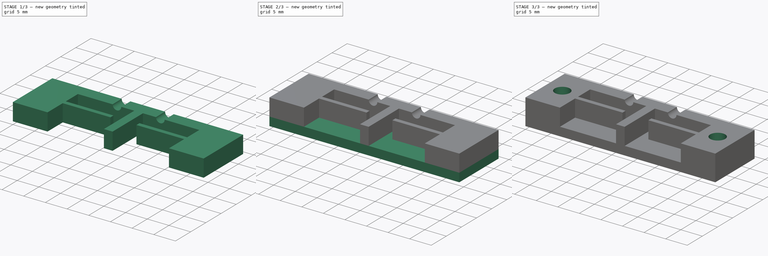
[diagram: build sequence overview — one tinted view per stage of 3, left to right]
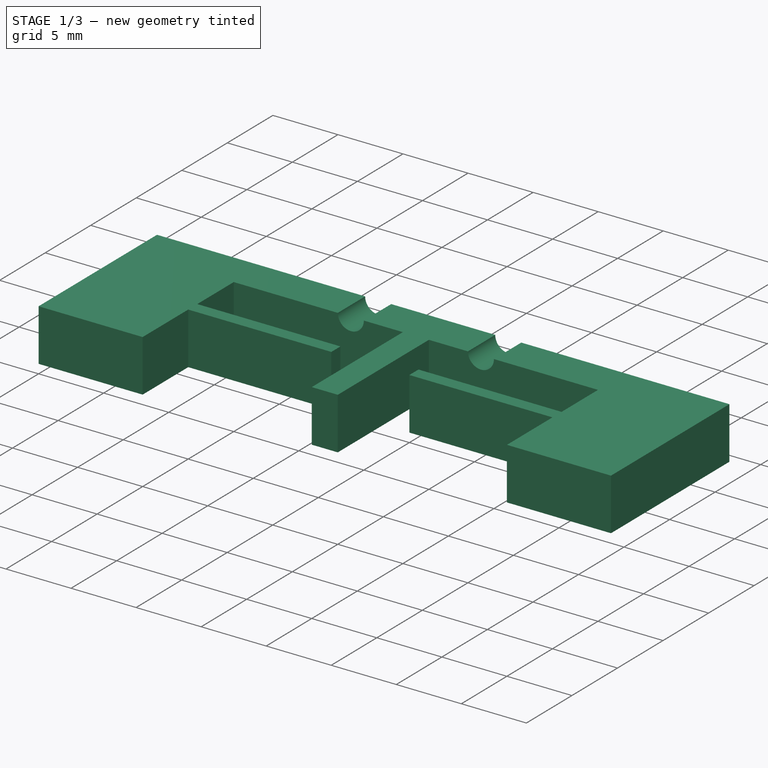
[diagram: stage 1 of 3 — iso view after this stage's code; geometry added in this stage tinted green]
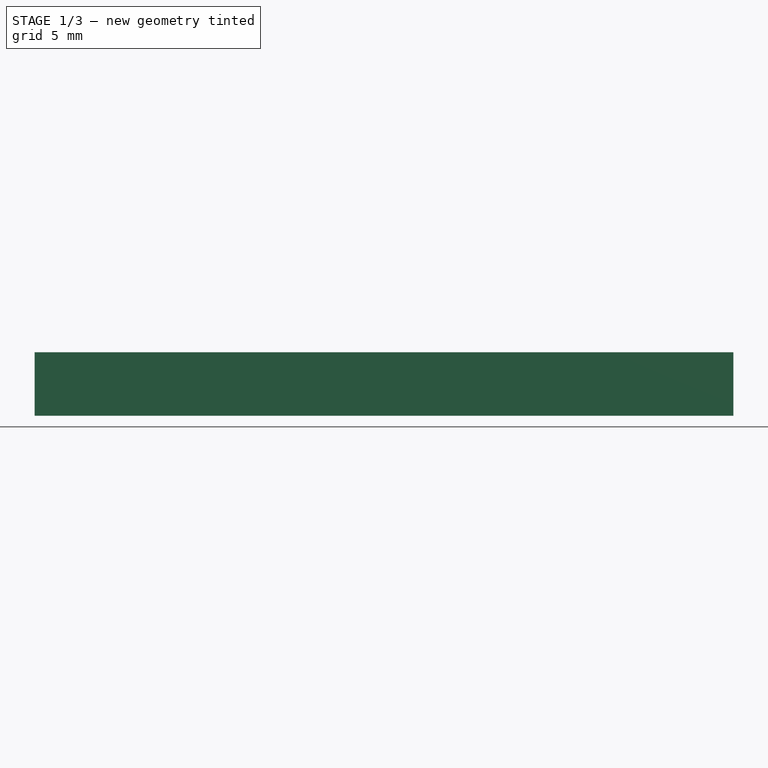
[diagram: stage 1 of 3 — front view after this stage's code; geometry added in this stage tinted green]
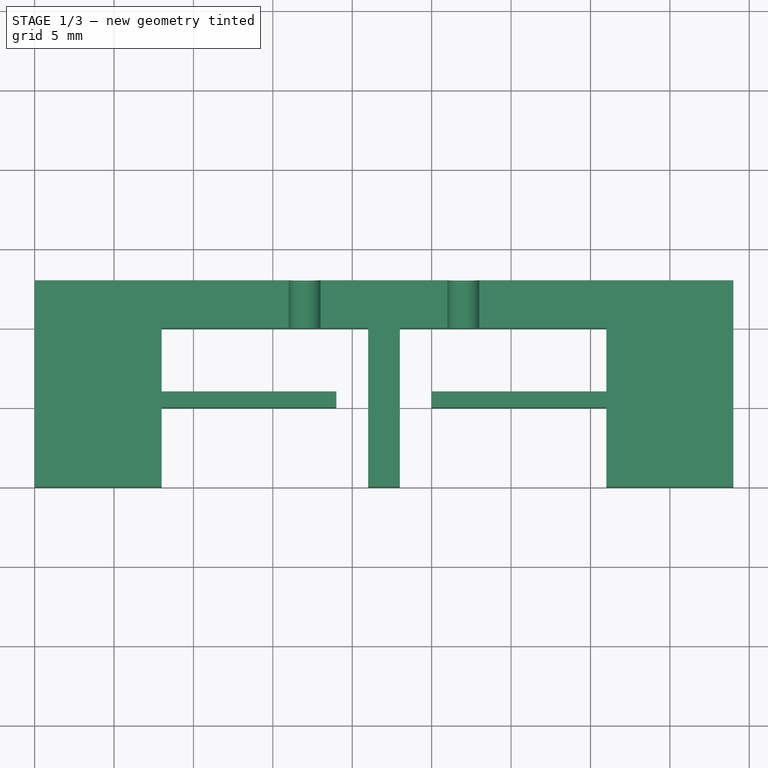
[diagram: stage 1 of 3 — top view after this stage's code; geometry added in this stage tinted green]
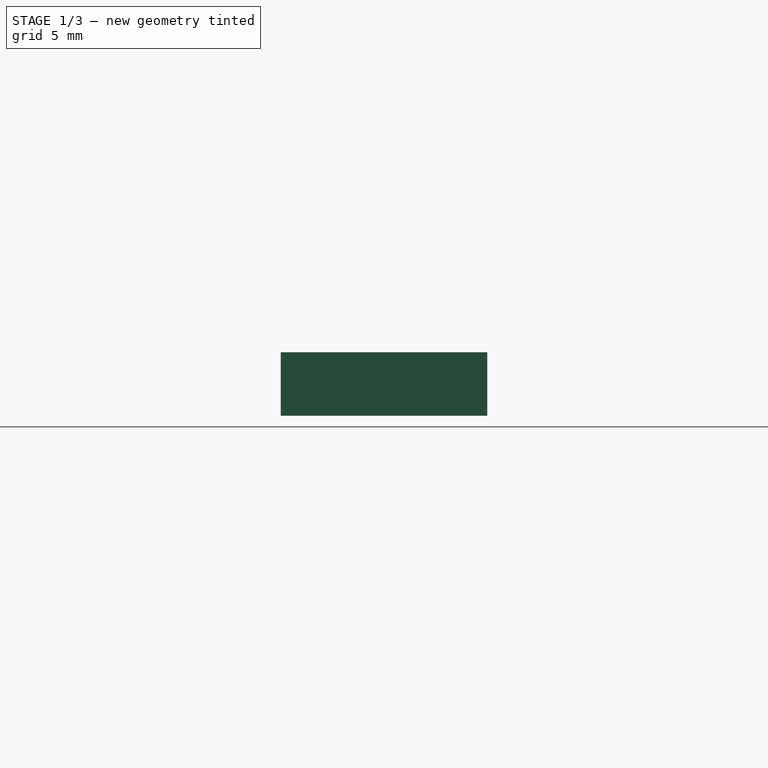
[diagram: stage 1 of 3 — right view after this stage's code; geometry added in this stage tinted green]
FCSTD DOCUMENT
Label: MagConnector
objects: Sketcher::SketchObject×5, PartDesign::Pocket×3, PartDesign::Pad×2
note: 12 computed .brp shape members not serialized (recipe doc carries the construction recipe); baked Part::Feature solids carry a one-line shape summary decoded from their .brp

FEATURE [Sketcher::SketchObject] Sketch
  sketch-geometry (20):
    g0: LineSegment StartX=8 StartY=10 StartZ=0 EndX=8 EndY=6 EndZ=0
    g1: LineSegment StartX=8 StartY=6 StartZ=0 EndX=19 EndY=6 EndZ=0
    g2: LineSegment StartX=19 StartY=6 StartZ=0 EndX=19 EndY=5 EndZ=0
    g3: LineSegment StartX=19 StartY=5 StartZ=0 EndX=8 EndY=5 EndZ=0
    g4: LineSegment StartX=8 StartY=5 StartZ=0 EndX=8 EndY=0 EndZ=0
    g5: LineSegment StartX=8 StartY=0 StartZ=0 EndX=0 EndY=0 EndZ=0
    g6: LineSegment StartX=0 StartY=0 StartZ=0 EndX=0 EndY=13 EndZ=0
    g7: LineSegment StartX=0 StartY=13 StartZ=0 EndX=44 EndY=13 EndZ=0
    g8: LineSegment StartX=44 StartY=13 StartZ=0 EndX=44 EndY=0 EndZ=0
    g9: LineSegment StartX=44 StartY=0 StartZ=0 EndX=36 EndY=0 EndZ=0
    g10: LineSegment StartX=36 StartY=0 StartZ=0 EndX=36 EndY=5 EndZ=0
    g11: LineSegment StartX=36 StartY=5 StartZ=0 EndX=25 EndY=5 EndZ=0
    g12: LineSegment StartX=25 StartY=5 StartZ=0 EndX=25 EndY=6 EndZ=0
    g13: LineSegment StartX=25 StartY=6 StartZ=0 EndX=36 EndY=6 EndZ=0
    g14: LineSegment StartX=36 StartY=6 StartZ=0 EndX=36 EndY=10 EndZ=0
    g15: LineSegment StartX=36 StartY=10 StartZ=0 EndX=23 EndY=10 EndZ=0
    g16: LineSegment StartX=23 StartY=10 StartZ=0 EndX=23 EndY=0 EndZ=0
    g17: LineSegment StartX=23 StartY=0 StartZ=0 EndX=21 EndY=0 EndZ=0
    g18: LineSegment StartX=21 StartY=0 StartZ=0 EndX=21 EndY=10 EndZ=0
    g19: LineSegment StartX=21 StartY=10 StartZ=0 EndX=8 EndY=10 EndZ=0
  constraints (60):
    c: Vertical(g0)
    c: Coincident(g0,g1)
    c: Horizontal(g1)
    c: Coincident(g1,g2)
    c: Coincident(g2,g3)
    c: Horizontal(g3)
    c: Coincident(g3,g4)
    c: Coincident(g4,g5)
    c: Horizontal(g5)
    c: Coincident(g5,g6)
    c: Vertical(g6)
    c: Coincident(g6,g7)
    c: Horizontal(g7)
    c: Coincident(g7,g8)
    c: Vertical(g8)
    c: Coincident(g8,g9)
    c: Horizontal(g9)
    c: Coincident(g9,g10)
    c: Vertical(g10)
    c: Coincident(g10,g11)
    c: Horizontal(g11)
    c: Coincident(g11,g12)
    c: Vertical(g12)
    c: Coincident(g12,g13)
    c: Horizontal(g13)
    c: Coincident(g13,g14)
    c: Vertical(g14)
    c: Coincident(g14,g15)
    c: Horizontal(g15)
    c: Coincident(g15,g16)
    c: Vertical(g16)
    c: Coincident(g16,g17)
    c: Horizontal(g17)
    c: Coincident(g17,g18)
    c: Vertical(g18)
    c: Coincident(g18,g19)
    c: Horizontal(g19)
    c: Coincident(g0,g19)
    c: DistanceY(g2) = -1
    c: DistanceX(g3) = -11
    c: Vertical(g4)
    c: Vertical(g2)
    c: Equal(g3,g1)
    c: Equal(g1,g13)
    c: Equal(g13,g11)
    c: Equal(g2,g12)
    c: Equal(g0,g14)
    c: Equal(g4,g10)
    c: Equal(g5,g9)
    c: DistanceX(g17) = -2
    c: DistanceX(g19) = -13
    c: DistanceX(g5) = -8
    c: DistanceY(g4) = -5
    c: DistanceY(g0) = -4
    c: DistanceY(g6) = 13
    c: DistanceX(g5) = 0
    c: DistanceY(g5) = 0
    c: DistanceY(g16) = -10
    c: Equal(g16,g18)
    c: Equal(g15,g19)
FEATURE [PartDesign::Pad] Pad
  Length = 4
  MirroredExtent = false
  Sketch = -> Sketch
FEATURE [Sketcher::SketchObject] Sketch001
  Placement = pos=(0,13,0) rot=(0,0.707107,0.707107;3.14159rad)
  Support = -> Pad [Face8]
  sketch-geometry (3):
    g0: Circle CenterX=-27 CenterY=4 CenterZ=0 NormalX=0 NormalY=0 NormalZ=1 Radius=1
    g1: Circle CenterX=-17 CenterY=4 CenterZ=0 NormalX=0 NormalY=0 NormalZ=1 Radius=1
    g2: LineSegment [constr] StartX=-27 StartY=4 StartZ=0 EndX=-17 EndY=4 EndZ=0
  constraints (8):
    c: Horizontal(g2)
    c: Coincident(g2,g1)
    c: Coincident(g0,g2)
    c: DistanceX(g2) = 10
    c: DistanceX(g1) = -17
    c: DistanceY(g1) = 4
    c: Radius(g1) = 1
    c: Equal(g1,g0)
FEATURE [PartDesign::Pocket] Pocket
  Length = 5
  Sketch = -> Sketch001
  Type = 0
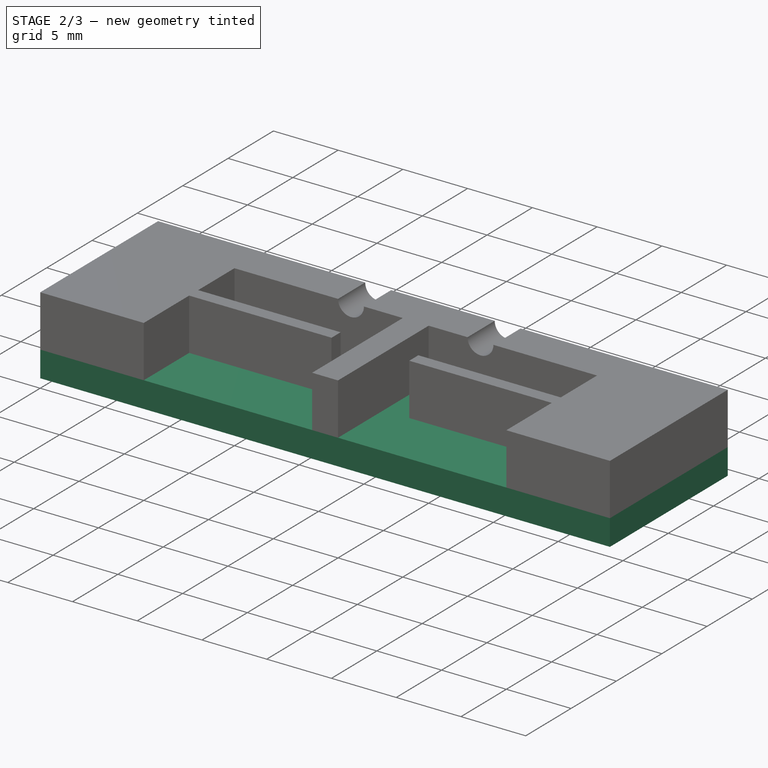
[diagram: stage 2 of 3 — iso view after this stage's code; geometry added in this stage tinted green]
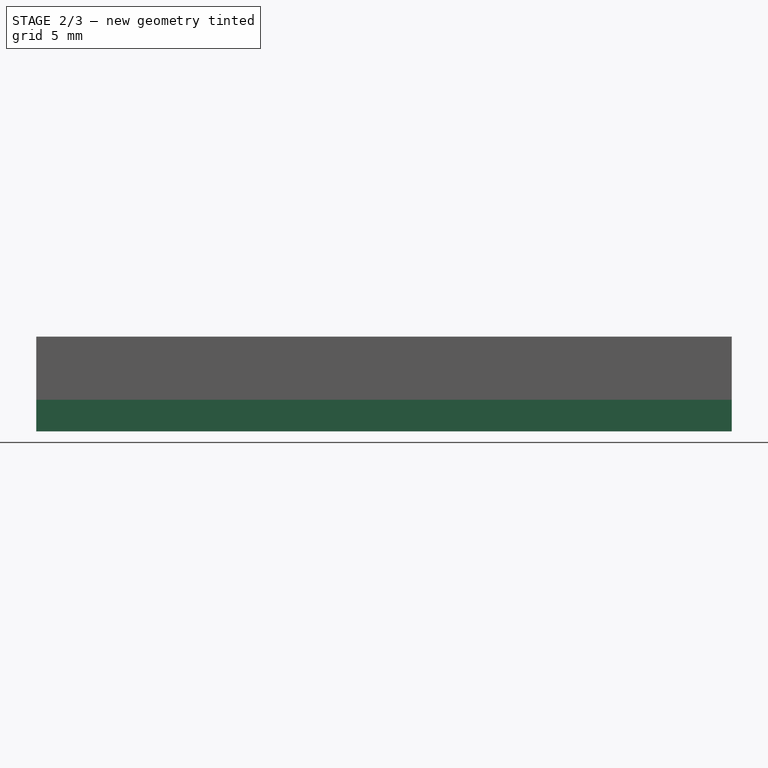
[diagram: stage 2 of 3 — front view after this stage's code; geometry added in this stage tinted green]
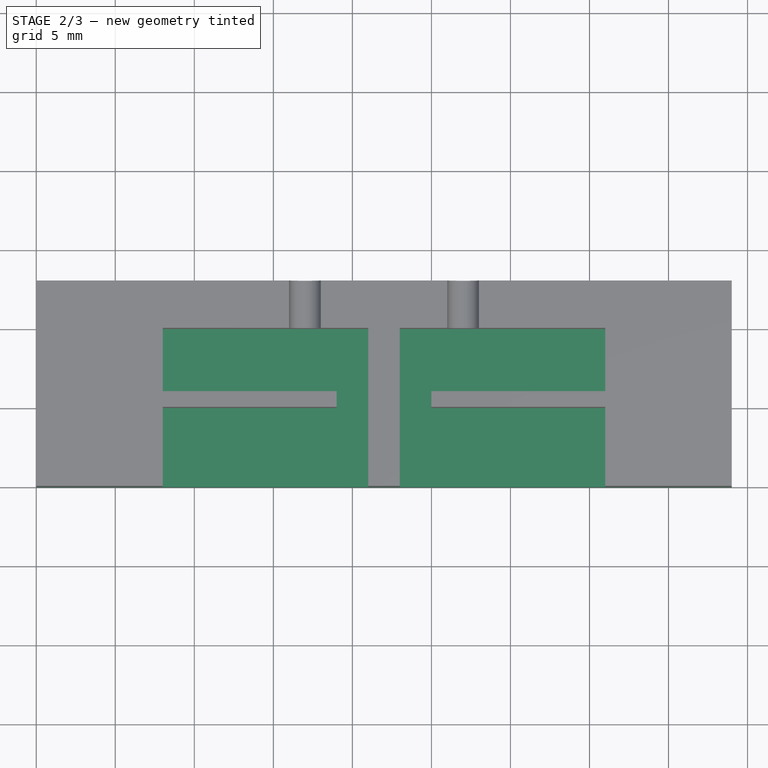
[diagram: stage 2 of 3 — top view after this stage's code; geometry added in this stage tinted green]
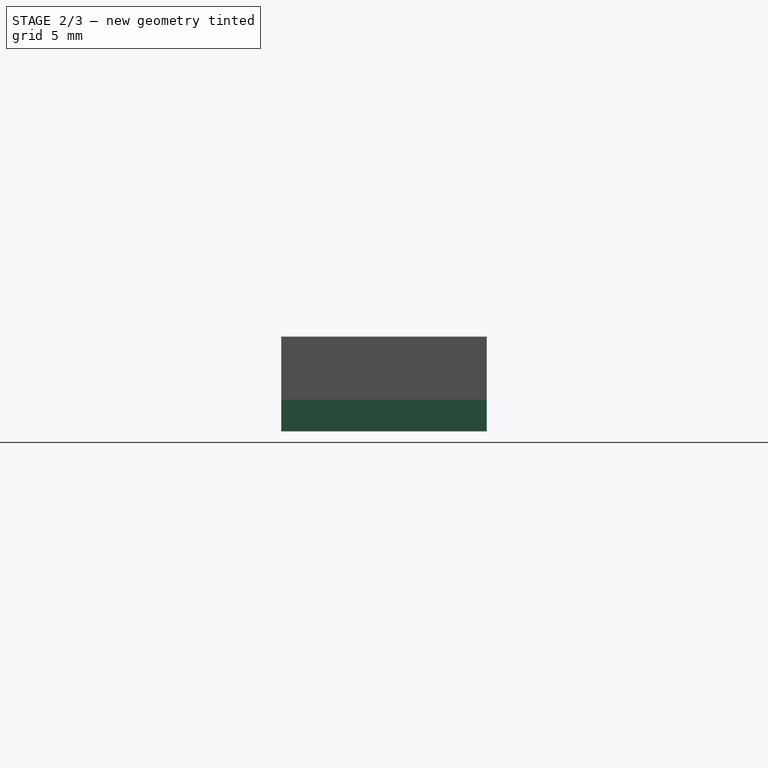
[diagram: stage 2 of 3 — right view after this stage's code; geometry added in this stage tinted green]
FEATURE [Sketcher::SketchObject] Sketch002
  Placement = pos=(0,0,0) rot=(1,0,0;3.14159rad)
  Support = -> Pocket [Face4]
  sketch-geometry (4):
    g0: LineSegment StartX=0 StartY=0 StartZ=0 EndX=44 EndY=0 EndZ=0
    g1: LineSegment StartX=44 StartY=0 StartZ=0 EndX=44 EndY=-13 EndZ=0
    g2: LineSegment StartX=44 StartY=-13 StartZ=0 EndX=0 EndY=-13 EndZ=0
    g3: LineSegment StartX=0 StartY=-13 StartZ=0 EndX=0 EndY=0 EndZ=0
  constraints (12):
    c: Coincident(g0,g1)
    c: Coincident(g1,g2)
    c: Coincident(g2,g3)
    c: Coincident(g3,g0)
    c: Horizontal(g0)
    c: Horizontal(g2)
    c: Vertical(g1)
    c: Vertical(g3)
    c: DistanceX(g2) = -44
    c: DistanceY(g3) = 13
    c: DistanceX(g0) = 0
    c: DistanceY(g0) = 0
FEATURE [PartDesign::Pad] Pad001
  Length = 2
  MirroredExtent = false
  Sketch = -> Sketch002
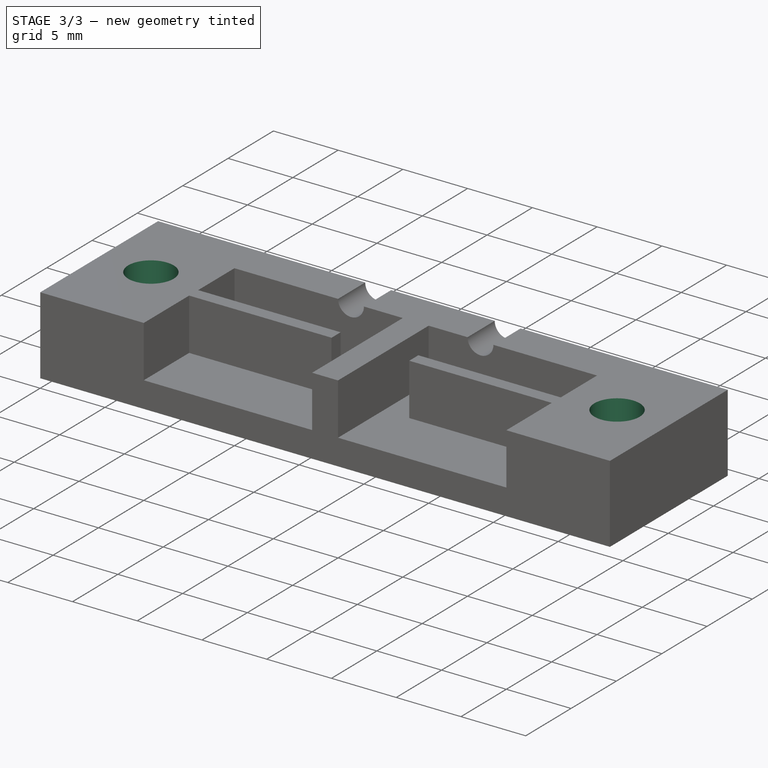
[diagram: stage 3 of 3 — iso view after this stage's code; geometry added in this stage tinted green]
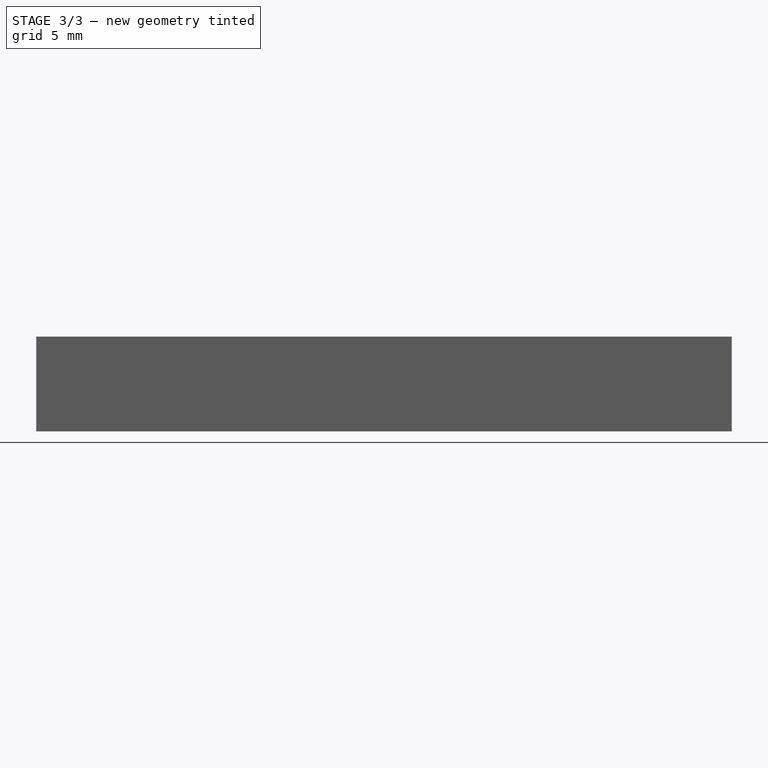
[diagram: stage 3 of 3 — front view after this stage's code; geometry added in this stage tinted green]
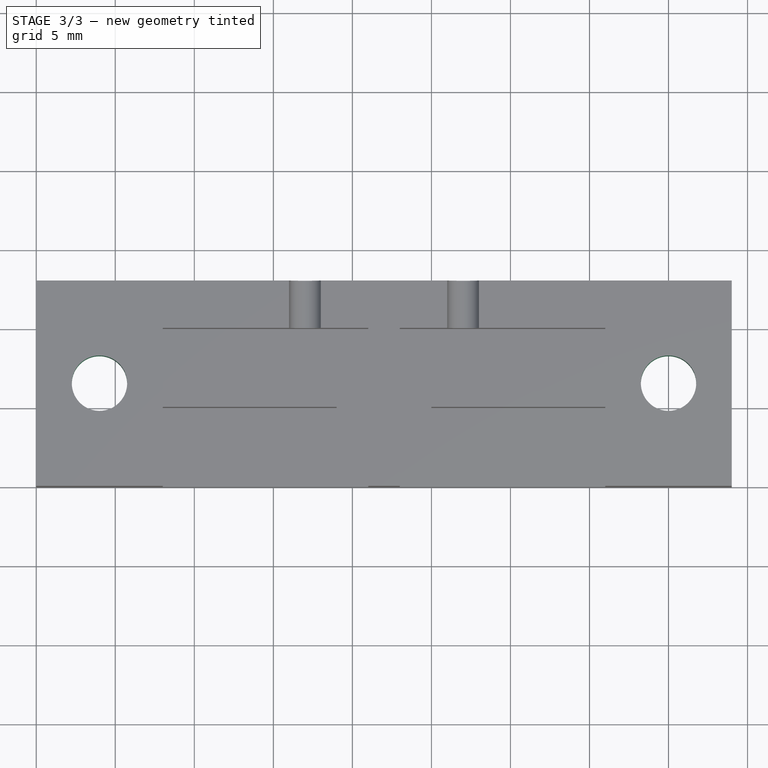
[diagram: stage 3 of 3 — top view after this stage's code; geometry added in this stage tinted green]
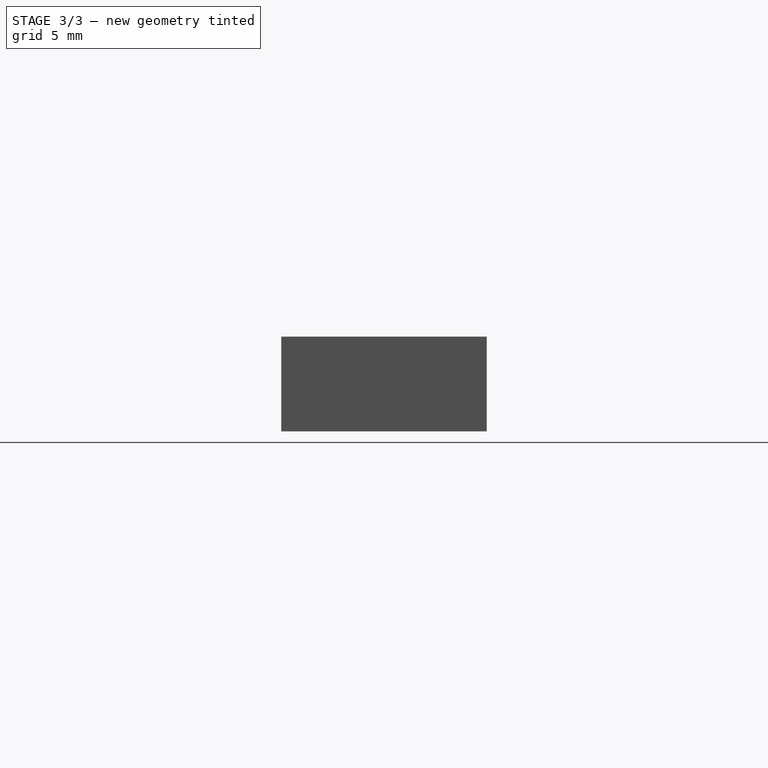
[diagram: stage 3 of 3 — right view after this stage's code; geometry added in this stage tinted green]
FEATURE [Sketcher::SketchObject] Sketch004
  Placement = pos=(0,0,-2) rot=(1,0,0;3.14159rad)
  Support = -> Pad001 [Face31]
  sketch-geometry (12):
    g0: LineSegment StartX=0.9 StartY=-8.28979 StartZ=0 EndX=0.9 EndY=-4.71021 EndZ=0
    g1: LineSegment StartX=0.9 StartY=-4.71021 StartZ=0 EndX=4 EndY=-2.92043 EndZ=0
    g2: LineSegment StartX=4 StartY=-2.92043 StartZ=0 EndX=7.1 EndY=-4.71021 EndZ=0
    g3: LineSegment StartX=7.1 StartY=-4.71021 StartZ=0 EndX=7.1 EndY=-8.28979 EndZ=0
    g4: LineSegment StartX=7.1 StartY=-8.28979 StartZ=0 EndX=4 EndY=-10.0796 EndZ=0
    g5: LineSegment StartX=4 StartY=-10.0796 StartZ=0 EndX=0.9 EndY=-8.28979 EndZ=0
    g6: LineSegment [constr] StartX=7.1 StartY=-4.71021 StartZ=0 EndX=4 EndY=-6.5 EndZ=0
    g7: LineSegment [constr] StartX=4 StartY=-6.5 StartZ=0 EndX=7.1 EndY=-8.28979 EndZ=0
    g8: LineSegment [constr] StartX=4 StartY=-6.5 StartZ=0 EndX=0.9 EndY=-4.71021 EndZ=0
    g9: LineSegment [constr] StartX=4 StartY=-6.5 StartZ=0 EndX=0.9 EndY=-8.28979 EndZ=0
    g10: LineSegment [constr] StartX=4 StartY=-2.92043 StartZ=0 EndX=4 EndY=-6.5 EndZ=0
    g11: Circle CenterX=40 CenterY=-6.5 CenterZ=0 NormalX=0 NormalY=0 NormalZ=1 Radius=3.5
  constraints (32):
    c: Coincident(g0,g1)
    c: Coincident(g1,g2)
    c: Coincident(g2,g3)
    c: Vertical(g3)
    c: Coincident(g3,g4)
    c: Coincident(g4,g5)
    c: Coincident(g0,g5)
    c: Vertical(g0)
    c: Equal(g0,g3)
    c: Equal(g2,g0)
    c: Equal(g1,g0)
    c: Parallel(g1,g4)
    c: Parallel(g2,g5)
    c: Coincident(g9,g8)
    c: Coincident(g7,g6)
    c: Coincident(g8,g6)
    c: Coincident(g3,g7)
    c: Coincident(g2,g6)
    c: Coincident(g8,g0)
    c: Coincident(g9,g0)
    c: Equal(g7,g6)
    c: Equal(g6,g8)
    c: Equal(g8,g9)
    c: Coincident(g10,g6)
    c: Coincident(g10,g1)
    c: Equal(g6,g10)
    c: DistanceX(g0,g3) = 6.2
    c: DistanceX(g6) = 4
    c: DistanceY(g6) = -6.5
    c: Radius(g11) = 3.5
    c: DistanceX(g11) = 40
    c: DistanceY(g11) = -6.5
FEATURE [PartDesign::Pocket] Pocket001
  Length = 3
  Sketch = -> Sketch004
  Type = 0
FEATURE [Sketcher::SketchObject] Sketch005
  Placement = pos=(0,0,4) rot=(0,0,1;0rad)
  Support = -> Pocket001 [Face1]
  sketch-geometry (2):
    g0: Circle CenterX=4 CenterY=6.5 CenterZ=0 NormalX=0 NormalY=0 NormalZ=1 Radius=1.75
    g1: Circle CenterX=40 CenterY=6.5 CenterZ=0 NormalX=0 NormalY=0 NormalZ=1 Radius=1.75
  constraints (6):
    c: Equal(g1,g0)
    c: Radius(g0) = 1.75
    c: DistanceX(g0) = 4
    c: DistanceY(g0) = 6.5
    c: DistanceX(g1) = 40
    c: DistanceY(g1) = 6.5
FEATURE [PartDesign::Pocket] Pocket002
  Length = 5
  Sketch = -> Sketch005
  Type = 0
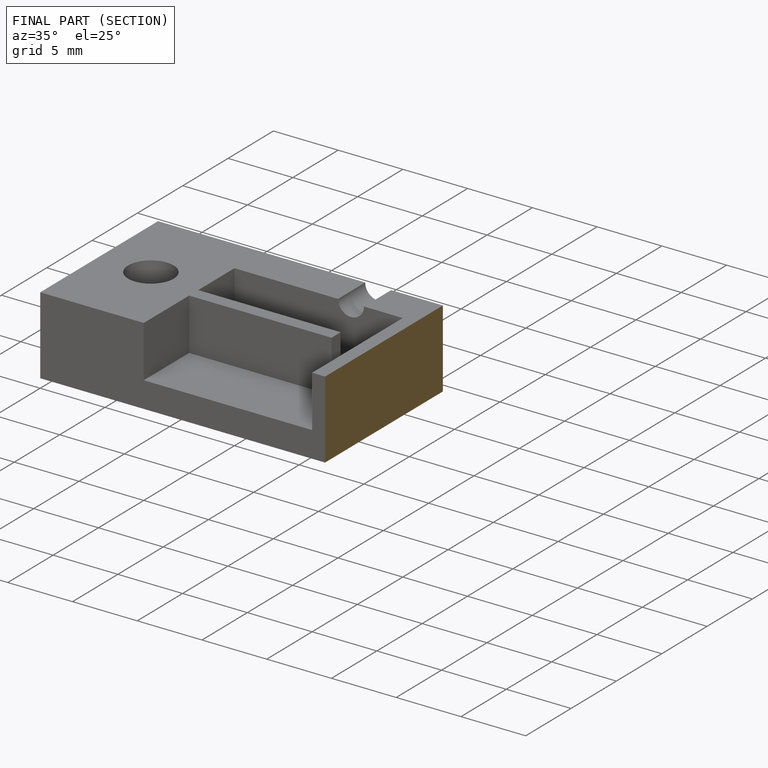
[diagram: finished part — half-section view (interior)]
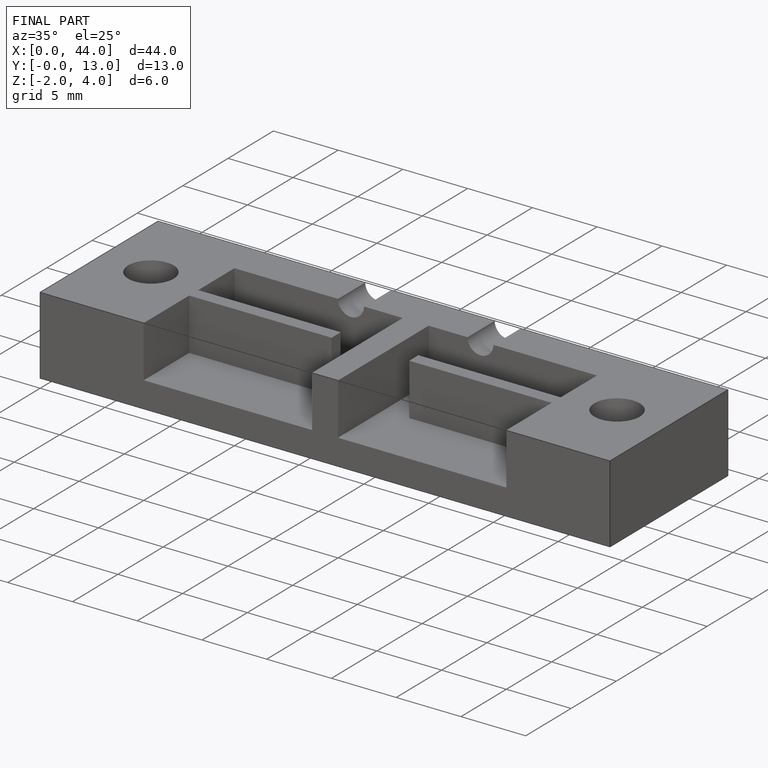
[diagram: finished part — iso view with bounding-box wireframe]
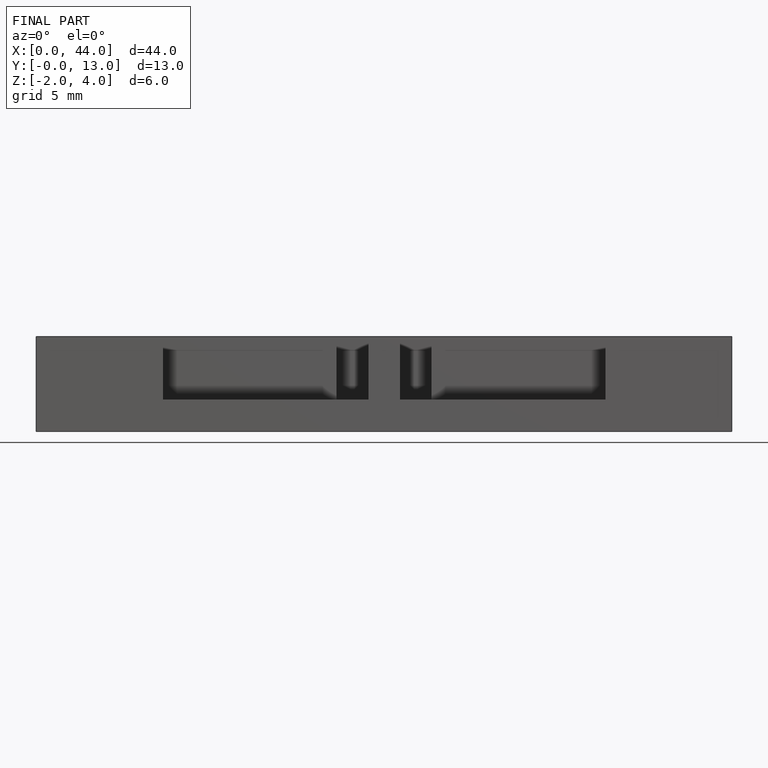
[diagram: finished part — front view with bounding-box wireframe]
